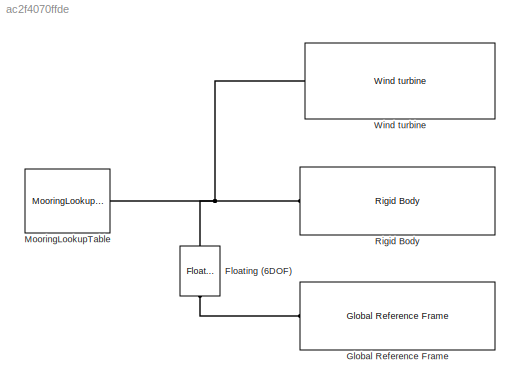
MODEL slx_ac2f4070ffde
KIND model
CONFIG AbsTol = auto
CONFIG EnableMultiTasking = off
CONFIG FixedStep = 0.05
CONFIG MaxStep = 0.05
CONFIG MinStep = auto
CONFIG RelTol = 1e-3
CONFIG SampleTimeConstraint = Unconstrained
CONFIG Solver = ode4
CONFIG SolverName = ode4
CONFIG StartTime = 0
CONFIG StopTime = 500
BLOCK [Reference] Floating (6DOF)  REF=WECSim_Lib_Constraints/Floating (6DOF)
  AttributesFormatString = %<constraint>
  NameLocation = left
  Ports = [0, 0, 0, 0, 0, 1, 1]
  SourceBlock = WECSim_Lib_Constraints/Floating (6DOF)
  SourceType = Constraints
BLOCK [Reference] Global Reference Frame  REF=WECSim_Lib_Frames/Global Reference Frame
  NameLocation = top
  Ports = [0, 0, 0, 0, 0, 0, 1]
  SourceBlock = WECSim_Lib_Frames/Global Reference Frame
  SourceType = Frames
BLOCK [Reference] MooringLookupTable  REF=WECSim_Lib_Moorings/MooringLookupTable
  AttributesFormatString = %<mooring>
  NameLocation = top
  Ports = [0, 0, 0, 0, 0, 1]
  SourceBlock = WECSim_Lib_Moorings/MooringLookupTable
BLOCK [Reference] Rigid Body  REF=WECSim_Lib_Body_Elements/Rigid Body
  AttributesFormatString = %<body>
  NameLocation = top
  Ports = [0, 0, 0, 0, 0, 0, 1]
  SourceBlock = WECSim_Lib_Body_Elements/Rigid Body
  SourceType = Rigid Body
BLOCK [Reference] Wind turbine  REF=MOST_Lib/Wind turbine
  NameLocation = top
  Ports = [0, 0, 0, 0, 0, 0, 1]
  SourceBlock = MOST_Lib/Wind turbine
  SourceProductName = MOST
PLINE Floating (6DOF):LConn1 -- Global Reference Frame:RConn1
PNET net1: Floating (6DOF):RConn1 -- MooringLookupTable:LConn1 -- Rigid Body:RConn1 -- Wind turbine:RConn1
note: PNET lines group multi-terminal physical nets as a canonical sorted terminal list (undirected conserving connections); 2-terminal nets keep the pairwise PLINE form
